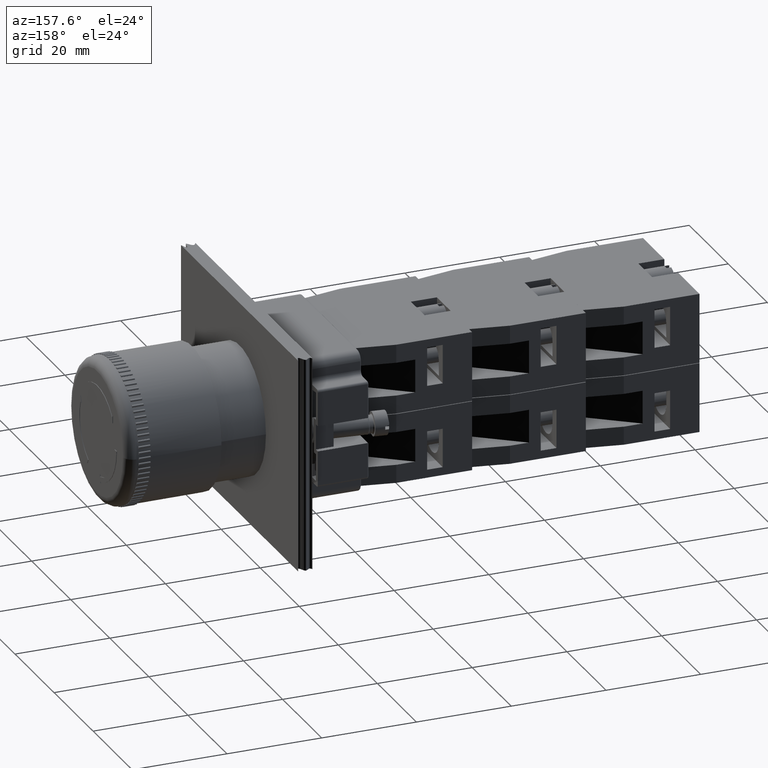
[diagram: clean part render]
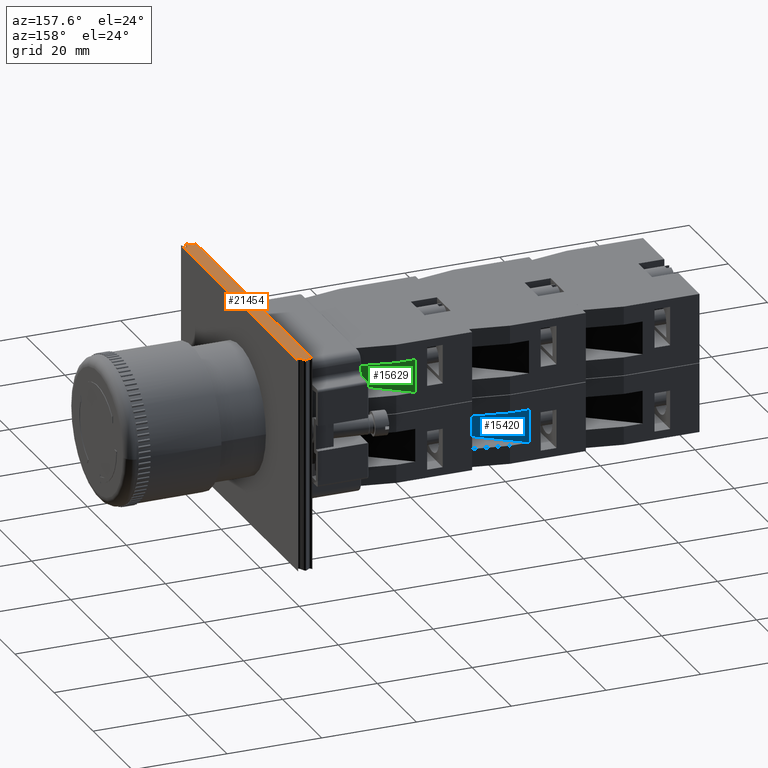
[diagram: same view with three faces highlighted in distinct colors, each labeled with its STEP entity id]
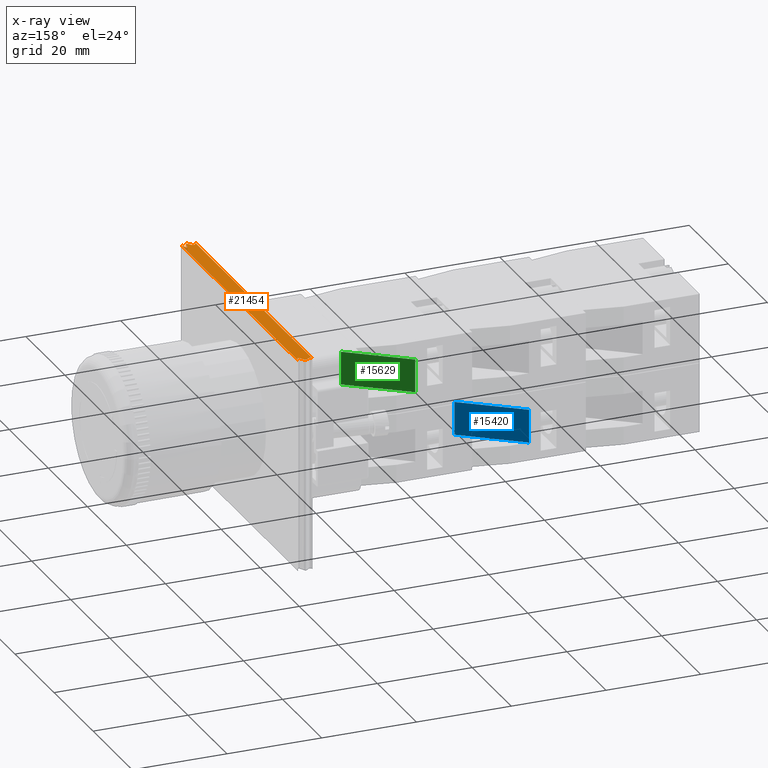
[diagram: x-ray of the same camera — body ghosted, the three highlighted faces saturated]
A machine part, auxiliary view with three faces highlighted in distinct colors.
The next image is the same camera in x-ray (body ghosted, the three faces saturated) — at least one of them is partly hidden behind the body in this view.
Their STEP definitions:

[orange] entity #21454 — the highlighted planar face has unit normal (-0, 0, 1).
#21292=CARTESIAN_POINT('',(-15.704183619849179,-2.725398273954287,45.0));
#21293=VERTEX_POINT('',#21292);
#21294=CARTESIAN_POINT('',(-12.704183619849179,-2.725398273954287,45.0));
#21295=VERTEX_POINT('',#21294);
#21296=CARTESIAN_POINT('',(-15.704183619849177,-2.725398273954286,45.0));
#21297=CARTESIAN_POINT('',(-14.667084388146536,-4.961008747338168,45.0));
#21298=CARTESIAN_POINT('',(-13.964099132856656,2.032835085571791,45.0));
#21299=CARTESIAN_POINT('',(-13.683988853155304,-7.243589001706696,45.0));
#21300=CARTESIAN_POINT('',(-12.704183619849175,-2.725398273954286,45.0));
#21301=QUASI_UNIFORM_CURVE('',4,(#21296,#21297,#21298,#21299,#21300),.UNSPECIFIED.,.F.,.U.);
#21302=EDGE_CURVE('',#21293,#21295,#21301,.T.);
#21336=CARTESIAN_POINT('',(-12.704183619849172,-62.725398273954283,45.0));
#21337=VERTEX_POINT('',#21336);
#21338=CARTESIAN_POINT('',(-12.704183619849179,-2.725398273954287,45.0));
#21339=DIRECTION('',(0.0,-1.0,0.0));
#21340=VECTOR('',#21339,60.0);
#21341=LINE('',#21338,#21340);
#21342=EDGE_CURVE('',#21295,#21337,#21341,.T.);
#21376=CARTESIAN_POINT('',(-15.704183619849179,-62.725398273954283,45.0));
#21377=VERTEX_POINT('',#21376);
#21378=CARTESIAN_POINT('',(-12.704183619849177,-62.725398273954298,45.0));
#21379=CARTESIAN_POINT('',(-14.371498841514271,-57.028426828334801,45.0));
#21380=CARTESIAN_POINT('',(-13.047229203726467,-69.825373706267470,45.0));
#21381=CARTESIAN_POINT('',(-14.283734517597093,-58.710287807173117,45.0));
#21382=CARTESIAN_POINT('',(-15.704183619849182,-62.725398273954283,45.0));
#21383=QUASI_UNIFORM_CURVE('',4,(#21378,#21379,#21380,#21381,#21382),.UNSPECIFIED.,.F.,.U.);
#21384=EDGE_CURVE('',#21337,#21377,#21383,.T.);
#21411=CARTESIAN_POINT('',(-15.704183619849179,-62.725398273954283,45.0));
#21412=DIRECTION('',(0.0,1.0,0.0));
#21413=VECTOR('',#21412,60.0);
#21414=LINE('',#21411,#21413);
#21415=EDGE_CURVE('',#21377,#21293,#21414,.T.);
#21443=CARTESIAN_POINT('',(-14.194110455510163,-33.005767774691193,45.0));
#21444=DIRECTION('',(0.0,0.0,1.0));
#21445=DIRECTION('',(1.0,0.0,0.0));
#21446=AXIS2_PLACEMENT_3D('',#21443,#21444,#21445);
#21447=PLANE('',#21446);
#21448=ORIENTED_EDGE('',*,*,#21302,.F.);
#21449=ORIENTED_EDGE('',*,*,#21415,.F.);
#21450=ORIENTED_EDGE('',*,*,#21384,.F.);
#21451=ORIENTED_EDGE('',*,*,#21342,.F.);
#21452=EDGE_LOOP('',(#21448,#21449,#21450,#21451));
#21453=FACE_OUTER_BOUND('',#21452,.T.);
#21454=ADVANCED_FACE('',(#21453),#21447,.T.);

[blue] entity #15420 — the highlighted face is a freeform B-spline surface patch.
#15365=CARTESIAN_POINT('',(-44.936741828918457,11.797073323279610,10.850000000000000));
#15366=VERTEX_POINT('',#15365);
#15373=CARTESIAN_POINT('',(-35.936741828918450,-0.202926676720384,10.850000000000000));
#15374=VERTEX_POINT('',#15373);
#15375=CARTESIAN_POINT('',(-35.936741828918450,-0.202926676720384,10.850000000000000));
#15376=DIRECTION('',(-0.600000000000000,0.800000000000000,0.0));
#15377=VECTOR('',#15376,15.0);
#15378=LINE('',#15375,#15377);
#15379=EDGE_CURVE('',#15374,#15366,#15378,.T.);
#15390=CARTESIAN_POINT('',(-44.936741828918464,11.797073323279616,3.850000000000000));
#15391=CARTESIAN_POINT('',(-44.936741828918464,11.797073323279616,10.850000000000001));
#15392=CARTESIAN_POINT('',(-35.936741828918443,-0.202926676720384,3.850000000000000));
#15393=CARTESIAN_POINT('',(-35.936741828918450,-0.202926676720384,10.850000000000001));
#15394=B_SPLINE_SURFACE_WITH_KNOTS('',1,1,((#15390,#15392),(#15391,#15393)),.UNSPECIFIED.,.F.,.F.,.U.,(2,2),(2,2),(0.0,7.000000000000002),(0.0,15.000000000000012),.UNSPECIFIED.);
#15395=CARTESIAN_POINT('',(-44.936741828918457,11.797073323279610,3.850000000000001));
#15396=VERTEX_POINT('',#15395);
#15397=CARTESIAN_POINT('',(-35.936741828918450,-0.202926676720384,3.850000000000001));
#15398=VERTEX_POINT('',#15397);
#15399=CARTESIAN_POINT('',(-44.936741828918457,11.797073323279610,3.850000000000001));
#15400=DIRECTION('',(0.600000000000000,-0.800000000000000,0.0));
#15401=VECTOR('',#15400,15.0);
#15402=LINE('',#15399,#15401);
#15403=EDGE_CURVE('',#15396,#15398,#15402,.T.);
#15404=ORIENTED_EDGE('',*,*,#15403,.T.);
#15405=CARTESIAN_POINT('',(-35.936741828918450,-0.202926676720384,10.850000000000000));
#15406=DIRECTION('',(0.0,0.0,-1.0));
#15407=VECTOR('',#15406,6.999999999999999);
#15408=LINE('',#15405,#15407);
#15409=EDGE_CURVE('',#15374,#15398,#15408,.T.);
#15410=ORIENTED_EDGE('',*,*,#15409,.F.);
#15411=ORIENTED_EDGE('',*,*,#15379,.T.);
#15412=CARTESIAN_POINT('',(-44.936741828918457,11.797073323279610,3.850000000000001));
#15413=DIRECTION('',(0.0,0.0,1.0));
#15414=VECTOR('',#15413,6.999999999999999);
#15415=LINE('',#15412,#15414);
#15416=EDGE_CURVE('',#15396,#15366,#15415,.T.);
#15417=ORIENTED_EDGE('',*,*,#15416,.F.);
#15418=EDGE_LOOP('',(#15404,#15410,#15411,#15417));
#15419=FACE_OUTER_BOUND('',#15418,.T.);
#15420=ADVANCED_FACE('',(#15419),#15394,.F.);

[green] entity #15629 — the highlighted planar face has unit normal (-0.6, -0.8, 0).
#15574=CARTESIAN_POINT('',(-24.936741828918464,-0.202926676720378,10.850000000000000));
#15575=VERTEX_POINT('',#15574);
#15582=CARTESIAN_POINT('',(-15.936741828918466,11.797073323279626,10.850000000000000));
#15583=VERTEX_POINT('',#15582);
#15584=CARTESIAN_POINT('',(-24.936741828918464,-0.202926676720378,10.850000000000000));
#15585=DIRECTION('',(0.600000000000000,0.800000000000000,0.0));
#15586=VECTOR('',#15585,15.000000000000002);
#15587=LINE('',#15584,#15586);
#15588=EDGE_CURVE('',#15575,#15583,#15587,.T.);
#15599=CARTESIAN_POINT('',(-15.936741828918466,11.797073323279626,7.350000000000000));
#15600=DIRECTION('',(-0.800000000000000,0.600000000000000,0.0));
#15601=DIRECTION('',(0.0,0.0,1.0));
#15602=AXIS2_PLACEMENT_3D('',#15599,#15600,#15601);
#15603=PLANE('',#15602);
#15604=CARTESIAN_POINT('',(-15.936741828918466,11.797073323279626,3.850000000000001));
#15605=VERTEX_POINT('',#15604);
#15606=CARTESIAN_POINT('',(-24.936741828918464,-0.202926676720378,3.850000000000001));
#15607=VERTEX_POINT('',#15606);
#15608=CARTESIAN_POINT('',(-15.936741828918466,11.797073323279626,3.850000000000001));
#15609=DIRECTION('',(-0.600000000000000,-0.800000000000000,0.0));
#15610=VECTOR('',#15609,15.000000000000002);
#15611=LINE('',#15608,#15610);
#15612=EDGE_CURVE('',#15605,#15607,#15611,.T.);
#15613=ORIENTED_EDGE('',*,*,#15612,.F.);
#15614=CARTESIAN_POINT('',(-15.936741828918466,11.797073323279626,10.850000000000000));
#15615=DIRECTION('',(0.0,0.0,-1.0));
#15616=VECTOR('',#15615,6.999999999999999);
#15617=LINE('',#15614,#15616);
#15618=EDGE_CURVE('',#15583,#15605,#15617,.T.);
#15619=ORIENTED_EDGE('',*,*,#15618,.F.);
#15620=ORIENTED_EDGE('',*,*,#15588,.F.);
#15621=CARTESIAN_POINT('',(-24.936741828918464,-0.202926676720378,3.850000000000001));
#15622=DIRECTION('',(0.0,0.0,1.0));
#15623=VECTOR('',#15622,6.999999999999999);
#15624=LINE('',#15621,#15623);
#15625=EDGE_CURVE('',#15607,#15575,#15624,.T.);
#15626=ORIENTED_EDGE('',*,*,#15625,.F.);
#15627=EDGE_LOOP('',(#15613,#15619,#15620,#15626));
#15628=FACE_OUTER_BOUND('',#15627,.T.);
#15629=ADVANCED_FACE('',(#15628),#15603,.F.);